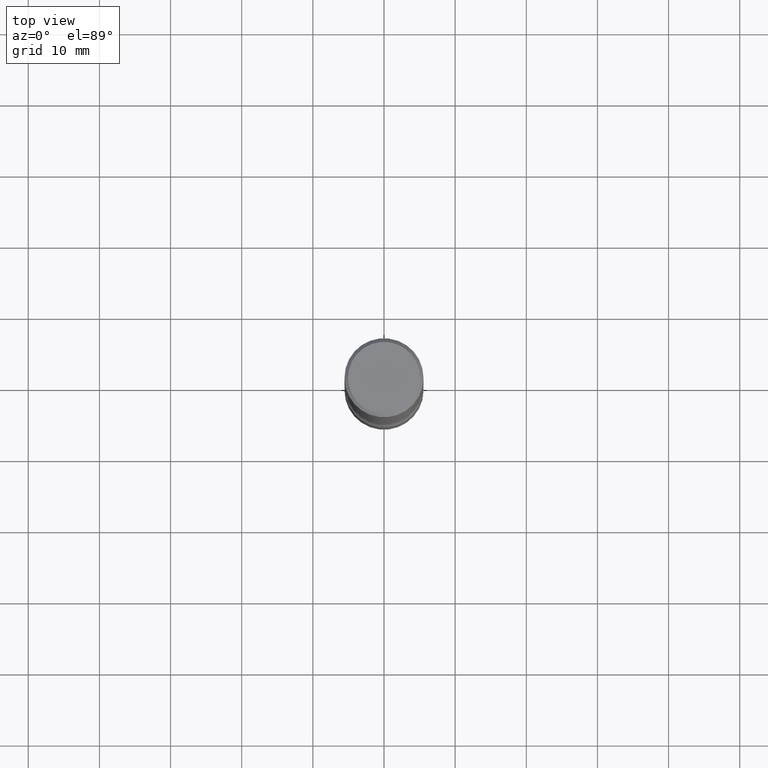
[diagram: clean part render]
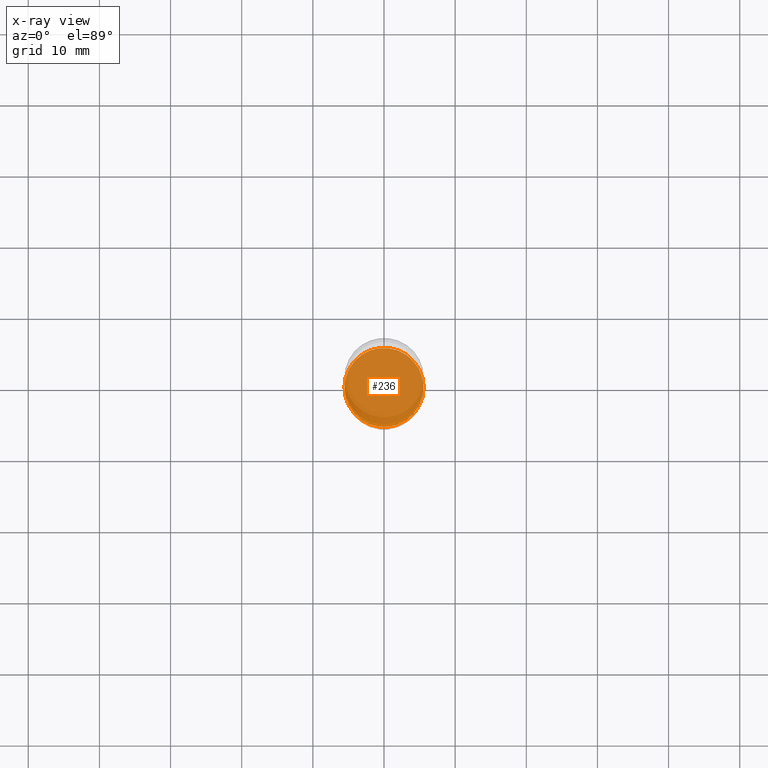
[diagram: x-ray — body ghosted, one internal face saturated and labeled with its STEP entity id]
A machine part, top view, then the same camera in x-ray: the body is ghosted and one INTERNAL B-rep face — a face not visible from any outside direction — is saturated and labeled: STEP entity #236.
In plain terms, the highlighted planar face has unit normal (0, -0, -1).
Its self-contained STEP definition (entity closure, byte-faithful):
#2 = CARTESIAN_POINT ( 'NONE',  ( 0.2187500000000001943, -1.243840226962869808E-14, -3.124999999999999112 ) ) ;
#46 = CARTESIAN_POINT ( 'NONE',  ( -0.2187500000000001943, -1.083171781507083697E-14, -3.124999999999999112 ) ) ;
#60 = VERTEX_POINT ( 'NONE', #2 ) ;
#96 = CIRCLE ( 'NONE', #420, 0.2187500000000001943 ) ;
#104 = ORIENTED_EDGE ( 'NONE', *, *, #145, .T. ) ;
#145 = EDGE_CURVE ( 'NONE', #60, #324, #96, .T. ) ;
#151 = CARTESIAN_POINT ( 'NONE',  ( 7.642090019328550744E-29, -1.091087918388482645E-14, -3.124999999999999112 ) ) ;
#187 = CIRCLE ( 'NONE', #314, 0.2187500000000001943 ) ;
#211 = CARTESIAN_POINT ( 'NONE',  ( 1.309248789957701946E-28, -3.105599201986939029E-15, -3.124999999999999112 ) ) ;
#213 = CARTESIAN_POINT ( 'NONE',  ( 7.642090019328550744E-29, -1.091087918388482645E-14, -3.124999999999999112 ) ) ;
#236 = ADVANCED_FACE ( 'NONE', ( #545 ), #429, .F. ) ;
#253 = DIRECTION ( 'NONE',  ( 2.438088387897960049E-29, -3.491481338843145188E-15, -1.000000000000000000 ) ) ;
#277 = EDGE_CURVE ( 'NONE', #324, #60, #187, .T. ) ;
#282 = EDGE_LOOP ( 'NONE', ( #104, #413 ) ) ;
#314 = AXIS2_PLACEMENT_3D ( 'NONE', #151, #509, #377 ) ;
#324 = VERTEX_POINT ( 'NONE', #46 ) ;
#377 = DIRECTION ( 'NONE',  ( 1.000000000000000000, -6.982962677686265922E-15, 0.000000000000000000 ) ) ;
#384 = DIRECTION ( 'NONE',  ( -2.445468806185136597E-29, 3.491481338843145583E-15, 1.000000000000000000 ) ) ;
#413 = ORIENTED_EDGE ( 'NONE', *, *, #277, .T. ) ;
#420 = AXIS2_PLACEMENT_3D ( 'NONE', #213, #384, #560 ) ;
#421 = DIRECTION ( 'NONE',  ( -1.000000000000000000, 6.982962677686265922E-15, -4.876176775795935793E-29 ) ) ;
#429 = PLANE ( 'NONE',  #540 ) ;
#509 = DIRECTION ( 'NONE',  ( -2.445468806185136597E-29, 3.491481338843145583E-15, 1.000000000000000000 ) ) ;
#540 = AXIS2_PLACEMENT_3D ( 'NONE', #211, #253, #421 ) ;
#545 = FACE_OUTER_BOUND ( 'NONE', #282, .T. ) ;
#560 = DIRECTION ( 'NONE',  ( 1.000000000000000000, -6.982962677686265922E-15, 0.000000000000000000 ) ) ;